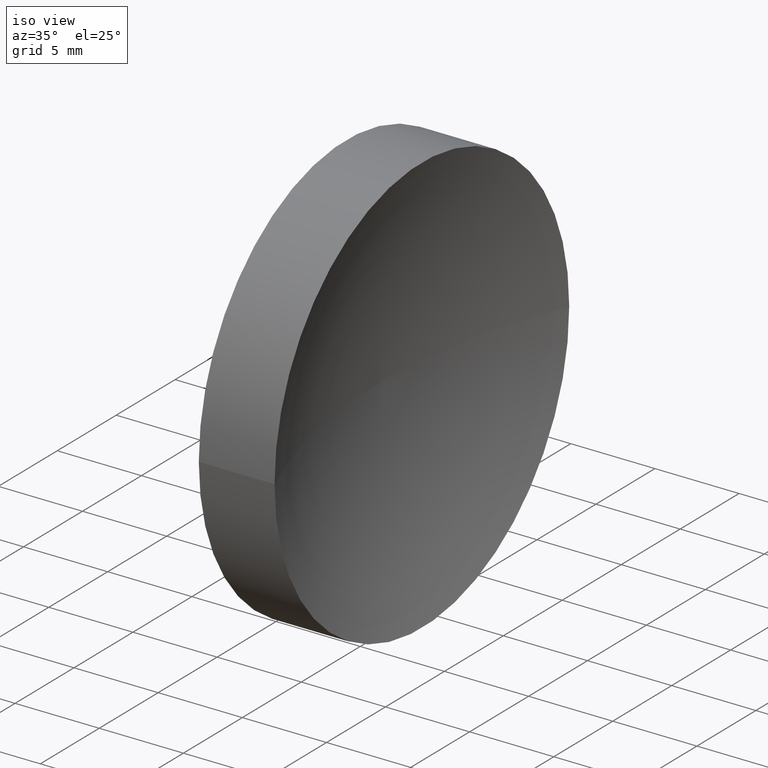
[diagram: clean part render]
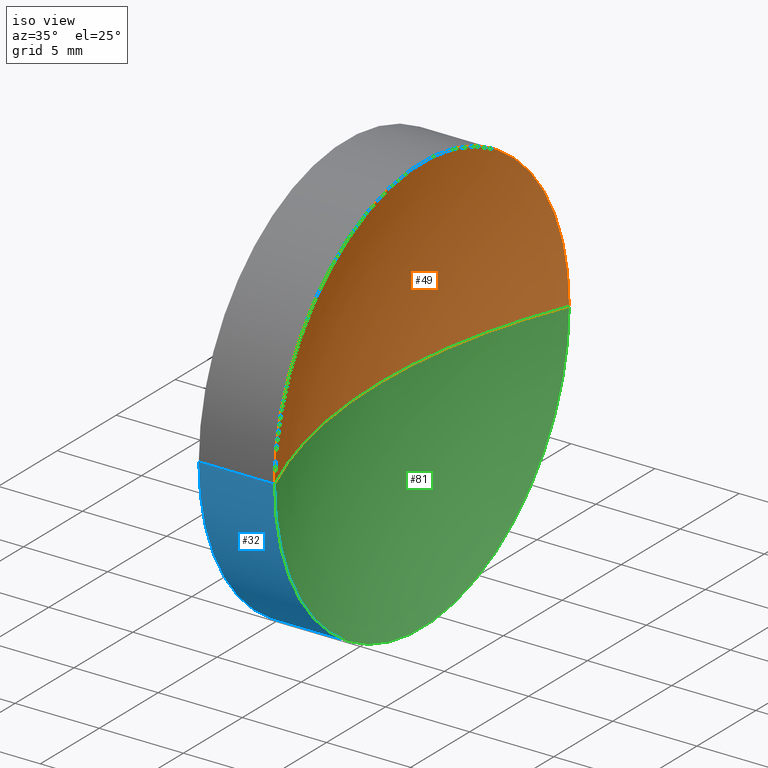
[diagram: same view with three faces highlighted in distinct colors, each labeled with its STEP entity id]
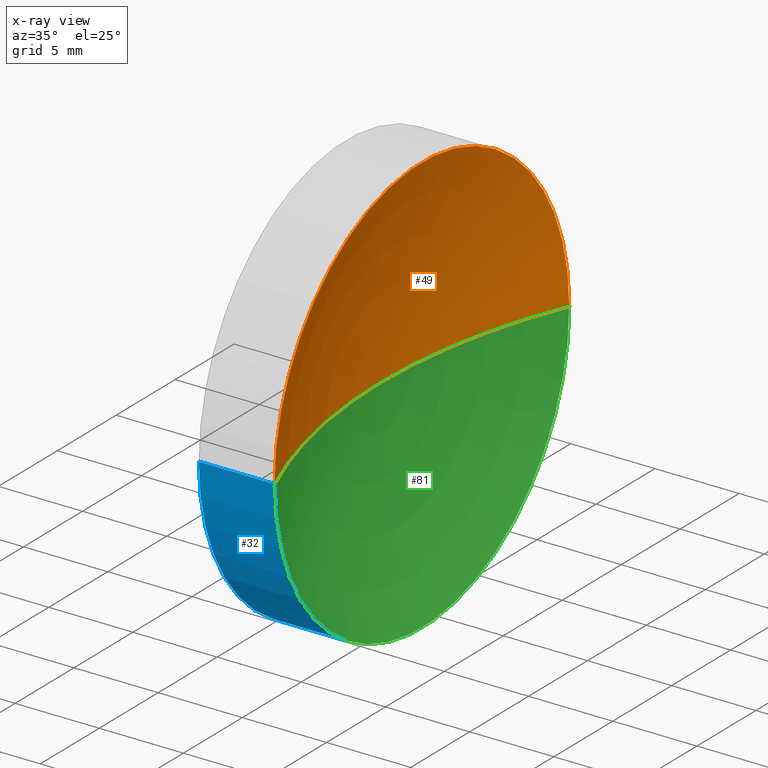
[diagram: x-ray of the same camera — body ghosted, the three highlighted faces saturated]
A machine part, iso view with three faces highlighted in distinct colors.
The next image is the same camera in x-ray (body ghosted, the three faces saturated) — at least one of them is partly hidden behind the body in this view.
Their STEP definitions:

[orange] entity #49 — the highlighted toroidal blend (fillet) surface has major radius 0 mm and minor (blend) radius 32.5 mm.
#1 = CARTESIAN_POINT ( 'NONE',  ( 61.85821049369445700, 20.07872591329309100, 0.0000000000000000000 ) ) ;
#7 = DIRECTION ( 'NONE',  ( -1.000000000000000000, 0.0000000000000000000, 0.0000000000000000000 ) ) ;
#12 = DIRECTION ( 'NONE',  ( -1.000000000000000000, 4.853228644174421400E-016, -0.0000000000000000000 ) ) ;
#17 = EDGE_CURVE ( 'NONE', #117, #138, #35, .T. ) ;
#21 = DIRECTION ( 'NONE',  ( 0.0000000000000000000, -0.0000000000000000000, -1.000000000000000000 ) ) ;
#30 = FACE_OUTER_BOUND ( 'NONE', #159, .T. ) ;
#31 = ORIENTED_EDGE ( 'NONE', *, *, #157, .F. ) ;
#33 = DIRECTION ( 'NONE',  ( -4.853228644174421400E-016, -1.000000000000000000, 0.0000000000000000000 ) ) ;
#35 = CIRCLE ( 'NONE', #61, 32.50000000000000000 ) ;
#37 = DIRECTION ( 'NONE',  ( -1.000000000000000000, 4.853228644174421400E-016, -0.0000000000000000000 ) ) ;
#49 = ADVANCED_FACE ( 'NONE', ( #30 ), #72, .F. ) ;
#51 = VERTEX_POINT ( 'NONE', #149 ) ;
#61 = AXIS2_PLACEMENT_3D ( 'NONE', #84, #21, #7 ) ;
#64 = CARTESIAN_POINT ( 'NONE',  ( 91.85819015802110200, 32.57867710778884200, -5.976950454606206000E-021 ) ) ;
#72 = TOROIDAL_SURFACE ( 'NONE', #73, -4.880550423818191400E-005, 32.50000000000000000 ) ;
#73 = AXIS2_PLACEMENT_3D ( 'NONE', #120, #37, #33 ) ;
#75 = CARTESIAN_POINT ( 'NONE',  ( 61.85821049369445700, 32.57872591329309800, 0.0000000000000000000 ) ) ;
#76 = DIRECTION ( 'NONE',  ( 0.0000000000000000000, -1.000000000000000000, -1.224646799147353500E-016 ) ) ;
#84 = CARTESIAN_POINT ( 'NONE',  ( 91.85819015802110200, 32.57877471879731200, 0.0000000000000000000 ) ) ;
#86 = CIRCLE ( 'NONE', #112, 32.50000000000000000 ) ;
#93 = ORIENTED_EDGE ( 'NONE', *, *, #17, .T. ) ;
#98 = DIRECTION ( 'NONE',  ( -5.943490924618453600E-032, -1.224646799147353200E-016, 1.000000000000000000 ) ) ;
#100 = DIRECTION ( 'NONE',  ( -5.551115123125779700E-016, -1.000000000000000000, 0.0000000000000000000 ) ) ;
#112 = AXIS2_PLACEMENT_3D ( 'NONE', #64, #98, #76 ) ;
#117 = VERTEX_POINT ( 'NONE', #1 ) ;
#120 = CARTESIAN_POINT ( 'NONE',  ( 91.85819015802110200, 32.57872591329307700, 0.0000000000000000000 ) ) ;
#134 = AXIS2_PLACEMENT_3D ( 'NONE', #75, #12, #100 ) ;
#135 = CIRCLE ( 'NONE', #134, 12.50000000000000700 ) ;
#136 = EDGE_CURVE ( 'NONE', #51, #138, #86, .T. ) ;
#138 = VERTEX_POINT ( 'NONE', #145 ) ;
#145 = CARTESIAN_POINT ( 'NONE',  ( 59.35819015805774500, 32.57872591329309100, 0.0000000000000000000 ) ) ;
#147 = ORIENTED_EDGE ( 'NONE', *, *, #136, .F. ) ;
#149 = CARTESIAN_POINT ( 'NONE',  ( 61.85821049369446500, 45.07872591329309800, 1.530808498934192300E-015 ) ) ;
#157 = EDGE_CURVE ( 'NONE', #117, #51, #135, .T. ) ;
#159 = EDGE_LOOP ( 'NONE', ( #147, #31, #93 ) ) ;

[blue] entity #32 — the highlighted cylindrical surface (partial cylindrical patch) has radius 12.5 mm, axis along (-1, 0, -0).
#1 = CARTESIAN_POINT ( 'NONE',  ( 61.85821049369445700, 20.07872591329309100, 0.0000000000000000000 ) ) ;
#2 = EDGE_CURVE ( 'NONE', #46, #77, #115, .T. ) ;
#5 = ORIENTED_EDGE ( 'NONE', *, *, #2, .F. ) ;
#10 = CARTESIAN_POINT ( 'NONE',  ( 55.00739462442117400, 20.07872591329309500, 0.0000000000000000000 ) ) ;
#16 = CIRCLE ( 'NONE', #131, 12.50000000000000700 ) ;
#23 = CARTESIAN_POINT ( 'NONE',  ( 61.85821049369445700, 32.57872591329309800, 0.0000000000000000000 ) ) ;
#27 = AXIS2_PLACEMENT_3D ( 'NONE', #119, #105, #52 ) ;
#29 = AXIS2_PLACEMENT_3D ( 'NONE', #63, #124, #95 ) ;
#32 = ADVANCED_FACE ( 'NONE', ( #122 ), #70, .T. ) ;
#40 = CARTESIAN_POINT ( 'NONE',  ( 57.35819015802110200, 20.07872591329309800, 0.0000000000000000000 ) ) ;
#42 = ORIENTED_EDGE ( 'NONE', *, *, #104, .F. ) ;
#44 = VECTOR ( 'NONE', #99, 1000.000000000000000 ) ;
#46 = VERTEX_POINT ( 'NONE', #107 ) ;
#51 = VERTEX_POINT ( 'NONE', #149 ) ;
#52 = DIRECTION ( 'NONE',  ( -5.551115123125784700E-016, -1.000000000000000000, 0.0000000000000000000 ) ) ;
#56 = DIRECTION ( 'NONE',  ( -1.000000000000000000, 4.853228644174421400E-016, -0.0000000000000000000 ) ) ;
#58 = LINE ( 'NONE', #10, #102 ) ;
#60 = ORIENTED_EDGE ( 'NONE', *, *, #153, .T. ) ;
#63 = CARTESIAN_POINT ( 'NONE',  ( 55.00739462442118100, 32.57872591329309800, 0.0000000000000000000 ) ) ;
#70 = CYLINDRICAL_SURFACE ( 'NONE', #29, 12.50000000000000000 ) ;
#77 = VERTEX_POINT ( 'NONE', #40 ) ;
#78 = CARTESIAN_POINT ( 'NONE',  ( 55.00739462442118800, 45.07872591329309100, 1.530808498934191500E-015 ) ) ;
#80 = EDGE_CURVE ( 'NONE', #51, #117, #16, .T. ) ;
#91 = LINE ( 'NONE', #78, #44 ) ;
#95 = DIRECTION ( 'NONE',  ( -5.551115123125782700E-016, -1.000000000000000000, 0.0000000000000000000 ) ) ;
#99 = DIRECTION ( 'NONE',  ( -1.000000000000000000, 4.853228644174421400E-016, -0.0000000000000000000 ) ) ;
#102 = VECTOR ( 'NONE', #56, 1000.000000000000000 ) ;
#104 = EDGE_CURVE ( 'NONE', #51, #46, #91, .T. ) ;
#105 = DIRECTION ( 'NONE',  ( -1.000000000000000000, 4.853228644174421400E-016, -0.0000000000000000000 ) ) ;
#107 = CARTESIAN_POINT ( 'NONE',  ( 57.35819015802111700, 45.07872591329309100, 1.530808498934191900E-015 ) ) ;
#115 = CIRCLE ( 'NONE', #27, 12.49999999999999600 ) ;
#117 = VERTEX_POINT ( 'NONE', #1 ) ;
#119 = CARTESIAN_POINT ( 'NONE',  ( 57.35819015802111000, 32.57872591329309800, 0.0000000000000000000 ) ) ;
#122 = FACE_OUTER_BOUND ( 'NONE', #146, .T. ) ;
#124 = DIRECTION ( 'NONE',  ( -1.000000000000000000, 4.853228644174421400E-016, -0.0000000000000000000 ) ) ;
#126 = ORIENTED_EDGE ( 'NONE', *, *, #80, .T. ) ;
#131 = AXIS2_PLACEMENT_3D ( 'NONE', #23, #165, #141 ) ;
#141 = DIRECTION ( 'NONE',  ( -5.551115123125779700E-016, -1.000000000000000000, 0.0000000000000000000 ) ) ;
#146 = EDGE_LOOP ( 'NONE', ( #42, #126, #60, #5 ) ) ;
#149 = CARTESIAN_POINT ( 'NONE',  ( 61.85821049369446500, 45.07872591329309800, 1.530808498934192300E-015 ) ) ;
#153 = EDGE_CURVE ( 'NONE', #117, #77, #58, .T. ) ;
#165 = DIRECTION ( 'NONE',  ( -1.000000000000000000, 4.853228644174421400E-016, -0.0000000000000000000 ) ) ;

[green] entity #81 — the highlighted toroidal blend (fillet) surface has major radius 0 mm and minor (blend) radius 32.5 mm.
#1 = CARTESIAN_POINT ( 'NONE',  ( 61.85821049369445700, 20.07872591329309100, 0.0000000000000000000 ) ) ;
#6 = AXIS2_PLACEMENT_3D ( 'NONE', #88, #125, #156 ) ;
#7 = DIRECTION ( 'NONE',  ( -1.000000000000000000, 0.0000000000000000000, 0.0000000000000000000 ) ) ;
#16 = CIRCLE ( 'NONE', #131, 12.50000000000000700 ) ;
#17 = EDGE_CURVE ( 'NONE', #117, #138, #35, .T. ) ;
#18 = ORIENTED_EDGE ( 'NONE', *, *, #136, .T. ) ;
#21 = DIRECTION ( 'NONE',  ( 0.0000000000000000000, -0.0000000000000000000, -1.000000000000000000 ) ) ;
#23 = CARTESIAN_POINT ( 'NONE',  ( 61.85821049369445700, 32.57872591329309800, 0.0000000000000000000 ) ) ;
#35 = CIRCLE ( 'NONE', #61, 32.50000000000000000 ) ;
#51 = VERTEX_POINT ( 'NONE', #149 ) ;
#53 = ORIENTED_EDGE ( 'NONE', *, *, #17, .F. ) ;
#61 = AXIS2_PLACEMENT_3D ( 'NONE', #84, #21, #7 ) ;
#64 = CARTESIAN_POINT ( 'NONE',  ( 91.85819015802110200, 32.57867710778884200, -5.976950454606206000E-021 ) ) ;
#76 = DIRECTION ( 'NONE',  ( 0.0000000000000000000, -1.000000000000000000, -1.224646799147353500E-016 ) ) ;
#79 = TOROIDAL_SURFACE ( 'NONE', #6, -4.880550423818191400E-005, 32.50000000000000000 ) ;
#80 = EDGE_CURVE ( 'NONE', #51, #117, #16, .T. ) ;
#81 = ADVANCED_FACE ( 'NONE', ( #116 ), #79, .F. ) ;
#84 = CARTESIAN_POINT ( 'NONE',  ( 91.85819015802110200, 32.57877471879731200, 0.0000000000000000000 ) ) ;
#86 = CIRCLE ( 'NONE', #112, 32.50000000000000000 ) ;
#88 = CARTESIAN_POINT ( 'NONE',  ( 91.85819015802110200, 32.57872591329307700, 0.0000000000000000000 ) ) ;
#89 = ORIENTED_EDGE ( 'NONE', *, *, #80, .F. ) ;
#98 = DIRECTION ( 'NONE',  ( -5.943490924618453600E-032, -1.224646799147353200E-016, 1.000000000000000000 ) ) ;
#112 = AXIS2_PLACEMENT_3D ( 'NONE', #64, #98, #76 ) ;
#116 = FACE_OUTER_BOUND ( 'NONE', #154, .T. ) ;
#117 = VERTEX_POINT ( 'NONE', #1 ) ;
#125 = DIRECTION ( 'NONE',  ( -1.000000000000000000, 4.853228644174421400E-016, -0.0000000000000000000 ) ) ;
#131 = AXIS2_PLACEMENT_3D ( 'NONE', #23, #165, #141 ) ;
#136 = EDGE_CURVE ( 'NONE', #51, #138, #86, .T. ) ;
#138 = VERTEX_POINT ( 'NONE', #145 ) ;
#141 = DIRECTION ( 'NONE',  ( -5.551115123125779700E-016, -1.000000000000000000, 0.0000000000000000000 ) ) ;
#145 = CARTESIAN_POINT ( 'NONE',  ( 59.35819015805774500, 32.57872591329309100, 0.0000000000000000000 ) ) ;
#149 = CARTESIAN_POINT ( 'NONE',  ( 61.85821049369446500, 45.07872591329309800, 1.530808498934192300E-015 ) ) ;
#154 = EDGE_LOOP ( 'NONE', ( #89, #18, #53 ) ) ;
#156 = DIRECTION ( 'NONE',  ( -4.853228644174421400E-016, -1.000000000000000000, 0.0000000000000000000 ) ) ;
#165 = DIRECTION ( 'NONE',  ( -1.000000000000000000, 4.853228644174421400E-016, -0.0000000000000000000 ) ) ;